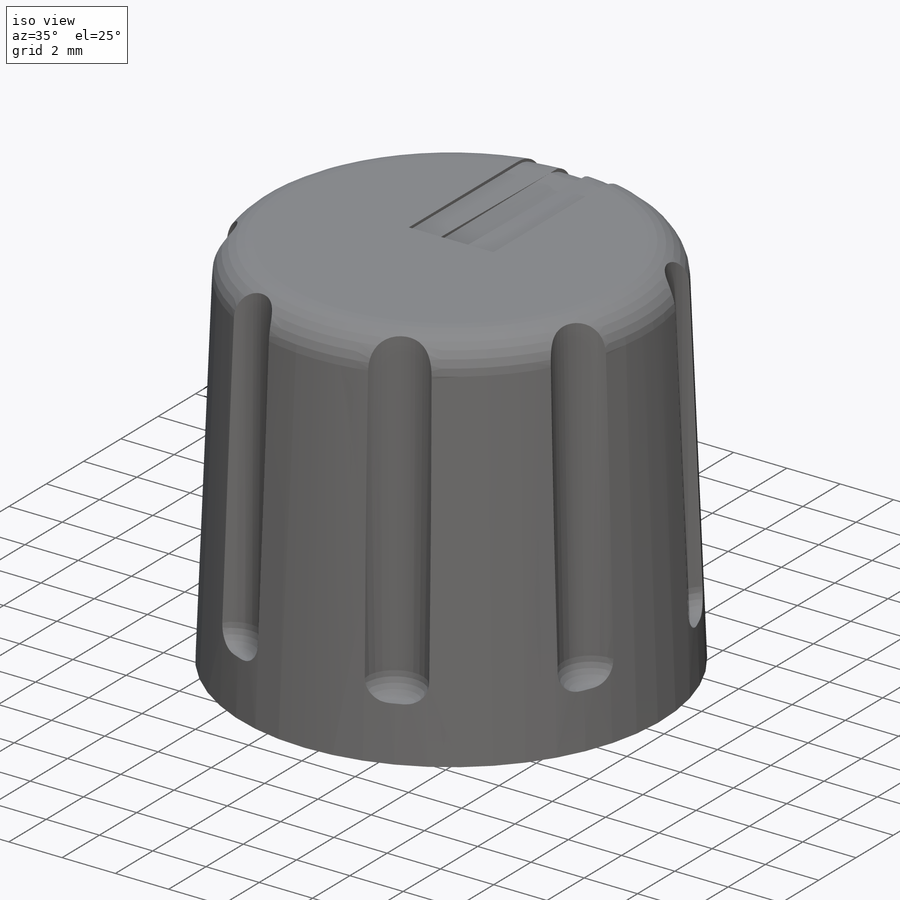
[diagram: iso view]
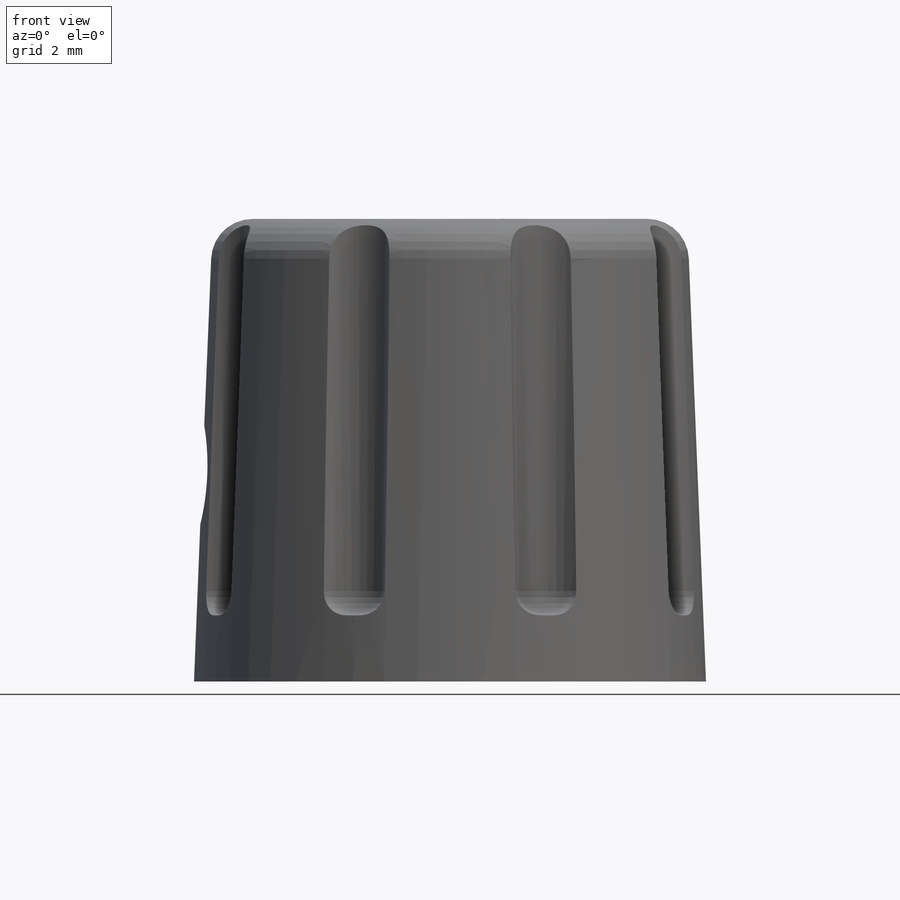
[diagram: front view]
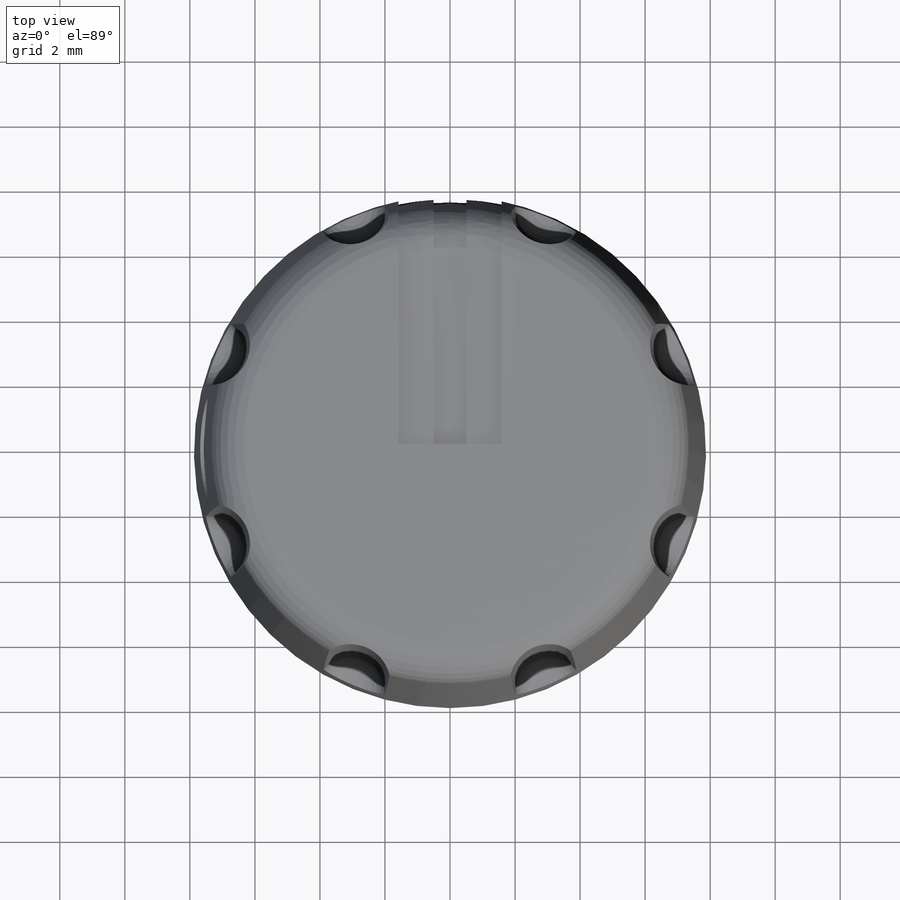
[diagram: top view]
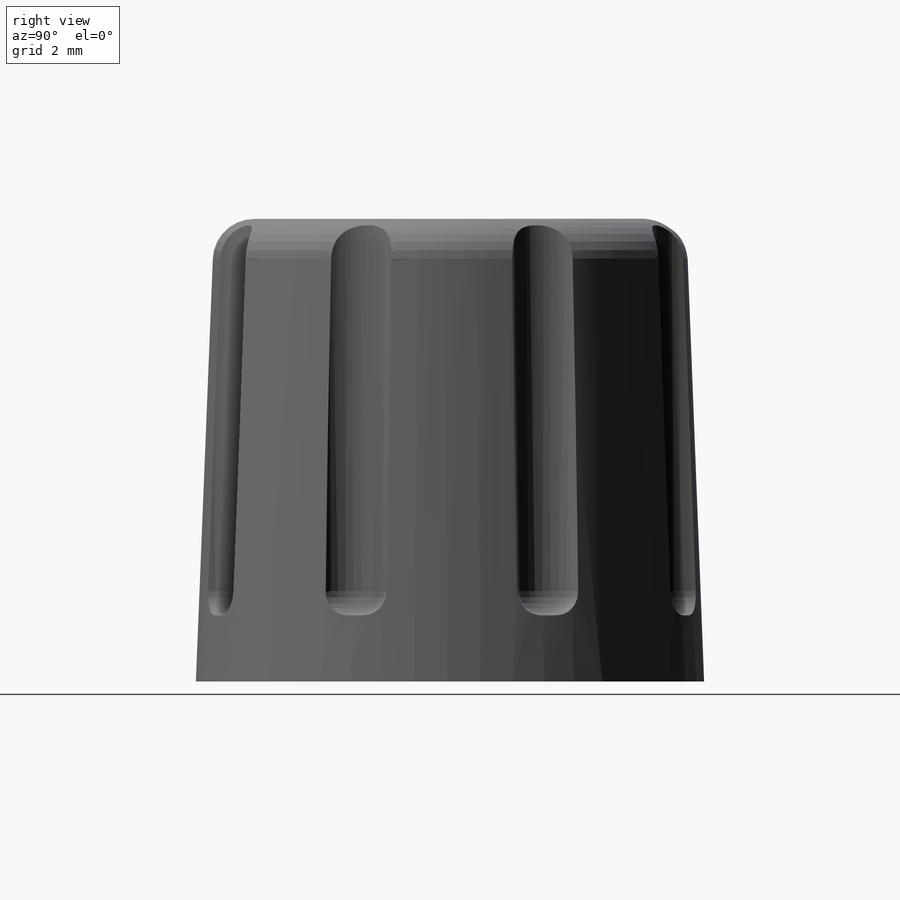
[diagram: right view]
SOLIDWORKS PART (.sldprt)
format: sldprt  version: not decoded by parser v0  size: 764,928 bytes
history: native  units: mm
features: sketch x16, plane x9, cut_extrude x6, fillet x2, sweep x2, material x1, revolve x1, pattern_circular x1 (+11 scaffold rows collapsed)
feature tree (49):
  scaffold x11  (default folders/planes/origin — collapsed)
  material  "PMMA"
  sketch  "Sketch1"  dims[c1.D1=22.352mm c1.D2=22.352mm c2.D1=7.874mm c2.D2=14.224mm c2.D3=11.176mm c3.D3=90.0deg c4.D3=11.176mm c5.D3=85.0deg c6.D3=11.176mm c7.D3=~87.70939deg c8.D3=7.874mm c9.D3=87.7deg]
  revolve  "Rotovat1"  Angle=360deg
  sketch  "Skica1"  dims[D1=~5.005309mm]
  cut_extrude  "Odebrat vysunutím1"  Depth=4.064mm
  sketch  "Skica2"  dims[D1=5.4864mm]
  cut_extrude  "Odebrat vysunutím3"  Depth=8.636mm
  plane  "Rovina1"  Offset=2.032mm
  sketch  "Skica5"  dims[c1.D3=~1.051897mm c1.D1=10.414mm c2.D1=45.0deg c3.D1=10.414mm c4.D1=67.5deg c4.D2=~2.059464mm c4.D3=~11.343263mm]
  cut_extrude  "Odebrat vysunutím5"  Depth=21.59mm
  pattern_circular  "Kruhové pole1"  Count=8 Angle=45deg
  fillet  "Zaoblit2"  Radius=1.27mm
  fillet  "Zaoblit3"  Radius=0.762mm
  sketch  "Skica14"  dims[D1=6.35mm]
  cut_extrude  "Odebrat vysunutím15"  Depth=13.208mm
  sketch  "Skica15"  dims[D3=3.175mm D1=1.5875mm D2=1.5875mm]
  cut_extrude  "Odebrat vysunutím17"  Depth=0.1016mm
  plane  "Rovina3"
  sketch  "Skica18"
  plane  "Rovina4"
  sketch  "Skica19"  dims[c1.D1=0.1016mm c1.D2=1.5875mm c1.D3=1.016mm c1.D4=0.508mm c2.D2=0.1016mm c2.D3=0.1016mm]
  sketch  "Skica20"  dims[c1.D1=~14.989135mm c2.D1=~179.696224deg c3.D1=~14.989135mm c4.D1=~179.968887deg]
  sweep  "Odebrat tažením po křivce2"
  plane  "Rovina7"  Offset=1.5875mm
  sketch  "Skica28"
  plane  "Rovina9"  Offset=1.5875mm
  sketch  "Skica32"
  plane  "Rovina11"
  sketch  "Skica33"
  sketch  "Skica34"  dims[c1.D1=0.508mm c1.D2=0.508mm c2.D1=0.508mm c2.D2=0.508mm]
  cut_extrude  "Odebrat vysunutím21"  Depth=0.1016mm
  plane  "Rovina12"  Offset=0mm
  plane  "Rovina13"  Offset=0mm
  sketch  "Skica35"
  sketch  "Skica37"
  plane  "Rovina14"
  sketch  "Skica38"
  sweep  "Odebrat spojením profilů4"
decode coverage: 19 of 28 modeling features carry decoded parameters
note: ~ marks probable driven/reference dimensions
note: suppression state not decoded; provenance and decode notes live in map.json
